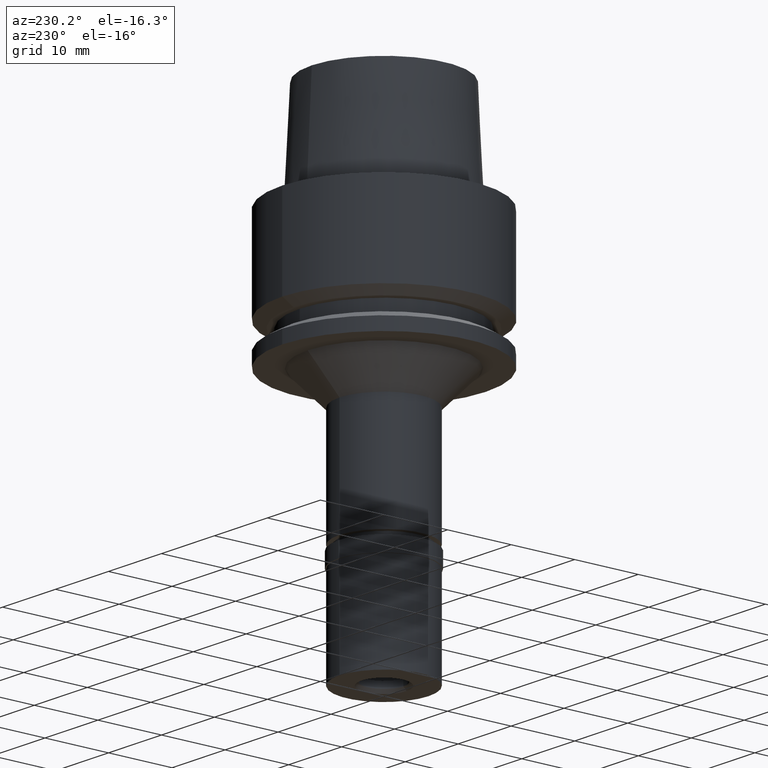
[diagram: clean part render]
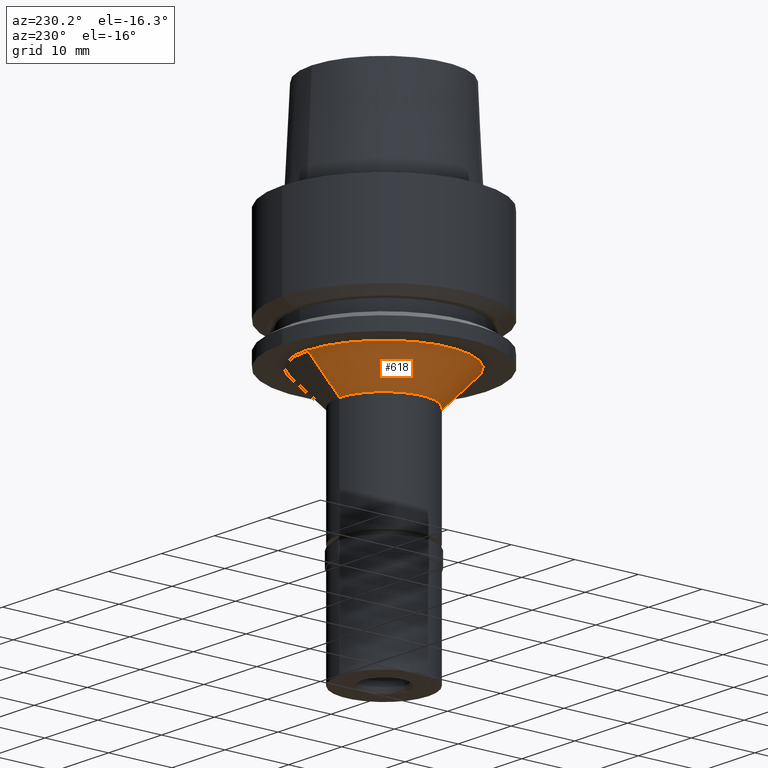
[diagram: same view with one face highlighted and labeled with its STEP entity id]
A machine part, auxiliary view. The second image highlights one B-rep face of the part: STEP entity #618.
In plain terms, the highlighted conical surface has half-angle 45 deg.
Its self-contained STEP definition (entity closure, byte-faithful):
#45 = CARTESIAN_POINT ( 'NONE',  ( 0.0000000000000000000, 0.0000000000000000000, -20.00000000000000000 ) ) ;
#59 = CARTESIAN_POINT ( 'NONE',  ( 0.0000000000000000000, -12.00000000000000000, -20.00000000000000000 ) ) ;
#116 = CIRCLE ( 'NONE', #419, 12.00000000000000000 ) ;
#211 = VERTEX_POINT ( 'NONE', #1158 ) ;
#229 = EDGE_CURVE ( 'NONE', #888, #651, #813, .T. ) ;
#323 = AXIS2_PLACEMENT_3D ( 'NONE', #2141, #1716, #647 ) ;
#419 = AXIS2_PLACEMENT_3D ( 'NONE', #45, #669, #1514 ) ;
#566 = FACE_OUTER_BOUND ( 'NONE', #1674, .T. ) ;
#618 = ADVANCED_FACE ( 'NONE', ( #566 ), #852, .T. ) ;
#629 = LINE ( 'NONE', #1866, #1865 ) ;
#647 = DIRECTION ( 'NONE',  ( 0.0000000000000000000, -1.000000000000000000, 0.0000000000000000000 ) ) ;
#651 = VERTEX_POINT ( 'NONE', #2218 ) ;
#669 = DIRECTION ( 'NONE',  ( 0.0000000000000000000, 0.0000000000000000000, -1.000000000000000000 ) ) ;
#713 = ORIENTED_EDGE ( 'NONE', *, *, #229, .F. ) ;
#794 = CARTESIAN_POINT ( 'NONE',  ( 0.0000000000000000000, 0.0000000000000000000, -22.50000000000000000 ) ) ;
#813 = CIRCLE ( 'NONE', #323, 7.000000000000000000 ) ;
#852 = CONICAL_SURFACE ( 'NONE', #991, 9.500000000000000000, 0.7853981633972997312 ) ;
#888 = VERTEX_POINT ( 'NONE', #1758 ) ;
#991 = AXIS2_PLACEMENT_3D ( 'NONE', #794, #1809, #2617 ) ;
#1158 = CARTESIAN_POINT ( 'NONE',  ( 0.0000000000000000000, -12.00000000000000000, -20.00000000000000000 ) ) ;
#1340 = VERTEX_POINT ( 'NONE', #1854 ) ;
#1510 = LINE ( 'NONE', #59, #2045 ) ;
#1514 = DIRECTION ( 'NONE',  ( 0.0000000000000000000, -1.000000000000000000, 0.0000000000000000000 ) ) ;
#1565 = EDGE_CURVE ( 'NONE', #211, #1340, #116, .T. ) ;
#1674 = EDGE_LOOP ( 'NONE', ( #713, #1926, #2569, #2591 ) ) ;
#1716 = DIRECTION ( 'NONE',  ( 0.0000000000000000000, 0.0000000000000000000, -1.000000000000000000 ) ) ;
#1758 = CARTESIAN_POINT ( 'NONE',  ( 0.0000000000000000000, -7.000000000000000000, -25.00000000000000000 ) ) ;
#1809 = DIRECTION ( 'NONE',  ( 0.0000000000000000000, 0.0000000000000000000, 1.000000000000000000 ) ) ;
#1854 = CARTESIAN_POINT ( 'NONE',  ( 0.0000000000000000000, 12.00000000000000000, -20.00000000000000000 ) ) ;
#1865 = VECTOR ( 'NONE', #1952, 1000.000000000000114 ) ;
#1866 = CARTESIAN_POINT ( 'NONE',  ( 0.0000000000000000000, 12.00000000000000000, -20.00000000000000000 ) ) ;
#1926 = ORIENTED_EDGE ( 'NONE', *, *, #2491, .F. ) ;
#1952 = DIRECTION ( 'NONE',  ( 0.0000000000000000000, -0.7071067811865474617, -0.7071067811865474617 ) ) ;
#2045 = VECTOR ( 'NONE', #2354, 1000.000000000000114 ) ;
#2139 = EDGE_CURVE ( 'NONE', #1340, #651, #629, .T. ) ;
#2141 = CARTESIAN_POINT ( 'NONE',  ( 0.0000000000000000000, 0.0000000000000000000, -25.00000000000000000 ) ) ;
#2218 = CARTESIAN_POINT ( 'NONE',  ( 0.0000000000000000000, 7.000000000000000000, -25.00000000000000000 ) ) ;
#2354 = DIRECTION ( 'NONE',  ( 0.0000000000000000000, 0.7071067811865474617, -0.7071067811865474617 ) ) ;
#2491 = EDGE_CURVE ( 'NONE', #211, #888, #1510, .T. ) ;
#2569 = ORIENTED_EDGE ( 'NONE', *, *, #1565, .T. ) ;
#2591 = ORIENTED_EDGE ( 'NONE', *, *, #2139, .T. ) ;
#2617 = DIRECTION ( 'NONE',  ( 0.0000000000000000000, 1.000000000000000000, 0.0000000000000000000 ) ) ;